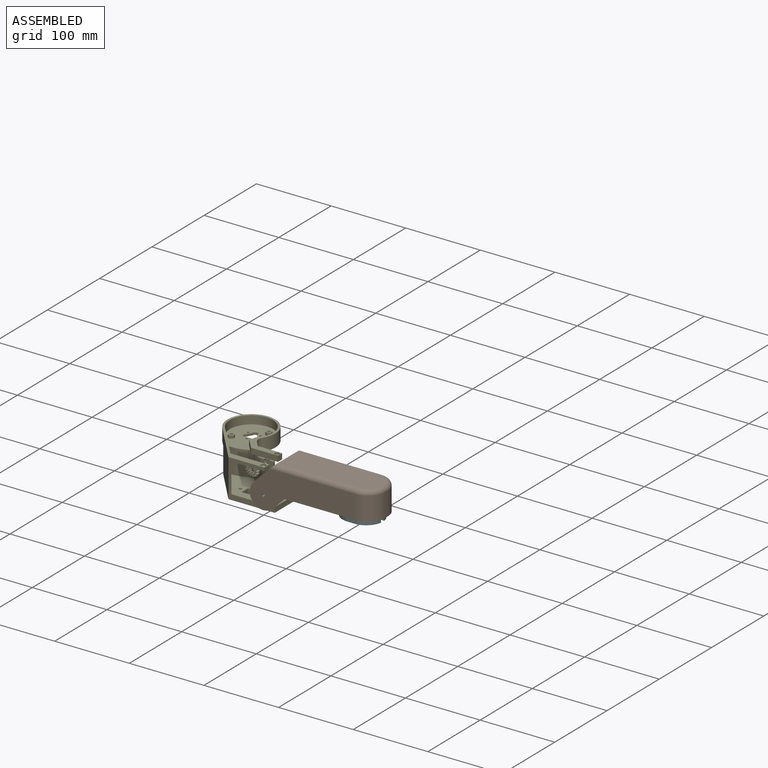
[diagram: assembled view]
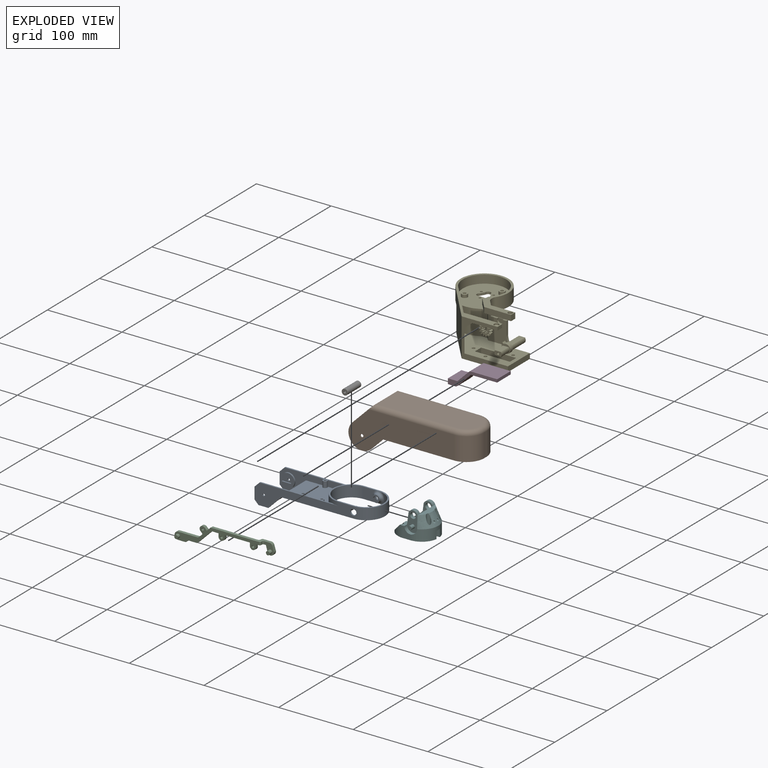
[diagram: exploded view]
GUIDED TOUR — FREECAD ASSEMBLY "ThirdArmUpDown"

This assembly has 7 components, labeled P0..P6 below (a component is one placed body or linked part; the same part can appear more than once), held together by 0 modeled joints plus 9 derived contact edges. A joint is a constraint between two components; its type names the relative motion it leaves free:
  CONTACT — a derived adjacency edge — the two components touch in the source model (clearance under 2% of the assembly's diagonal); it is measured from the geometry, not a modeled constraint.
Axis/direction vectors are unit vectors and 'through' points are millimeter coordinates, both in the assembly's world frame.

MATES
  1. CONTACT "contact_0_1": P0 <-> P1, contact direction (0.000, 1.000, 0.000) through (-0.05, 50.00, 1.75) mm (derived from contact, not a modeled constraint)
  2. CONTACT "contact_0_2": P0 <-> P2, contact direction (-1.000, 0.000, 0.000) through (-0.55, 4.00, 9.76) mm (derived from contact, not a modeled constraint)
  3. CONTACT "contact_0_4": P0 <-> P4, contact direction (0.000, 1.000, 0.000) through (0.18, 2.00, -1.49) mm (derived from contact, not a modeled constraint)
  4. CONTACT "contact_0_5": P0 <-> P5, contact direction (1.000, 0.000, 0.000) through (128.10, 4.09, 10.63) mm (derived from contact, not a modeled constraint)
  5. CONTACT "contact_1_4": P1 <-> P4, contact direction (0.000, 1.000, 0.000) through (-16.67, 49.98, -9.12) mm (derived from contact, not a modeled constraint)
  6. CONTACT "contact_1_5": P1 <-> P5, contact direction (1.000, 0.000, 0.000) through (122.24, 1.57, 3.19) mm (derived from contact, not a modeled constraint)
  7. CONTACT "contact_2_3": P2 <-> P3, contact direction (0.000, 1.000, 0.000) through (24.62, 12.00, 11.00) mm (derived from contact, not a modeled constraint)
  8. CONTACT "contact_2_5": P2 <-> P5, contact direction (1.000, 0.000, 0.000) through (118.02, 13.00, 20.13) mm (derived from contact, not a modeled constraint)
  9. CONTACT "contact_2_6": P2 <-> P6, contact direction (1.000, 0.000, 0.000) through (102.17, 12.05, 23.14) mm (derived from contact, not a modeled constraint)

ASSEMBLY ORDER
  1. P0 — the base component [order heuristic]
  2. P1 — core [order heuristic]
  3. P3 [order verified]
  4. P4 — core [order heuristic]
  5. P5 — core [order heuristic]
  6. P2 — core [order heuristic]
  7. P6 [order verified]
Order-tag legend:
  [order verified] — this step's position reverses a verified removal order: the component was checked to insert without passing through the ones already placed.
  [order heuristic] — the first 5 components form the assembly's core: parts whose collision-free extraction could not be verified, listed in mate-graph order.

Of the 7 components, 4 carry a construction recipe — the FreeCAD feature program (sketches with constraints, then the solid features that consume them) that regenerates the part from scratch, quoted from this document or from the linked companion document it references; the rest are supplied as boundary geometry only. The tour below walks the components in assembly order: each is shown spotlighted twice — in the assembled view, then in the exploded view, where a leader line traces a displaced component back to its assembled socket (components that stay in place when exploded have no leader line; saturated green if recipe-attached, orange if geometry-only; every other component desaturated gray) — followed by its recipe or geometry summary and the mates that hold it.
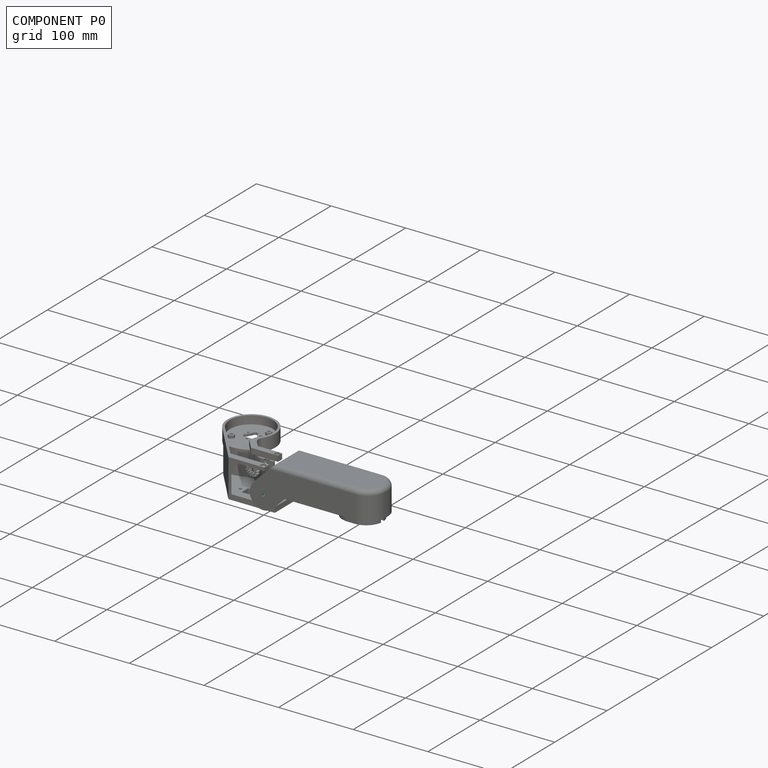
[diagram: component P0 — assembled]
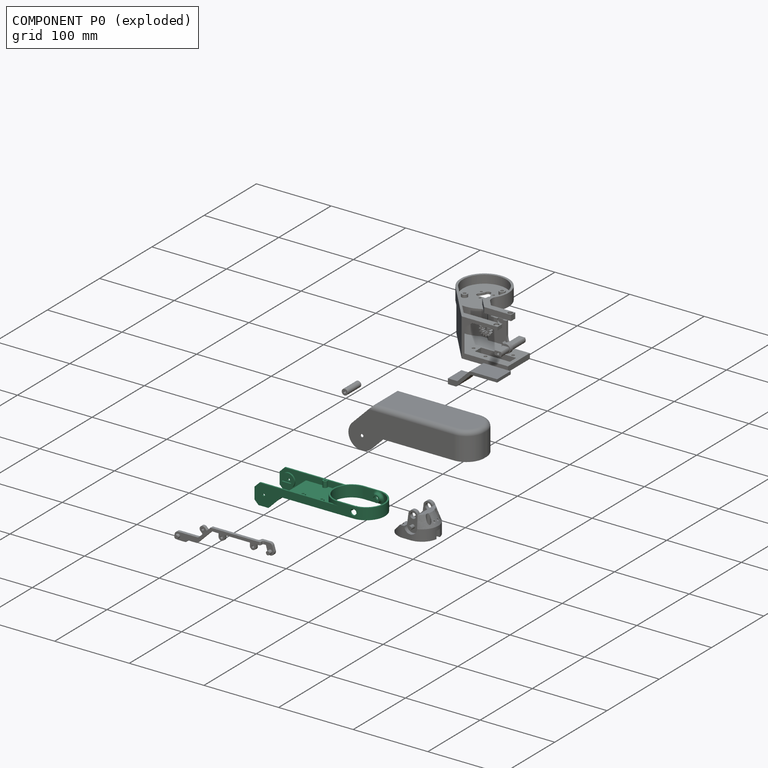
[diagram: component P0 — exploded]
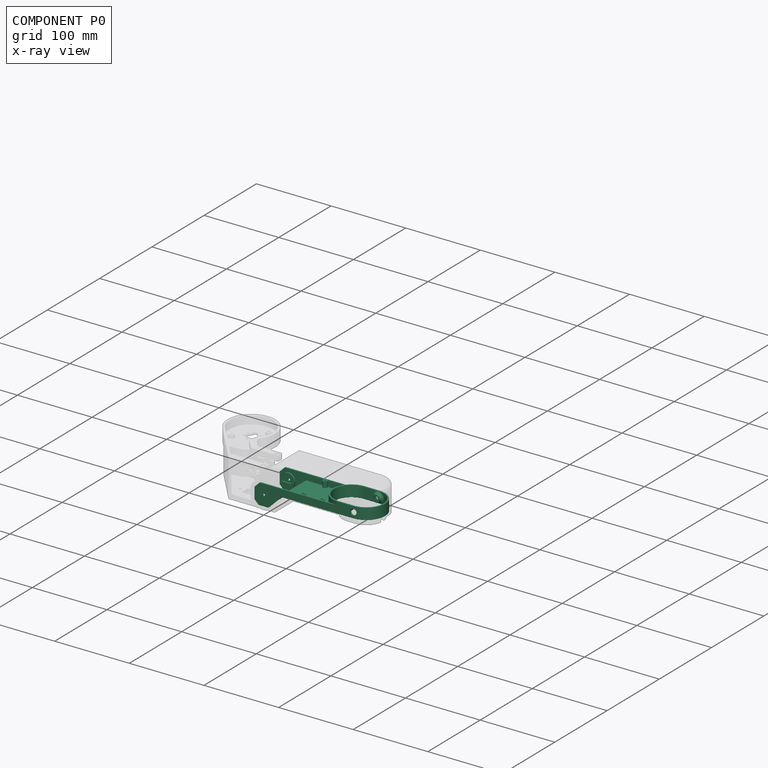
[diagram: component P0 — x-ray view]
COMPONENT P0 — recipe-attached ("ThirdArm", modeled in this document).
Held by: resting contact with P1 (derived edge); resting contact with P2 (derived edge); resting contact with P4 (derived edge); resting contact with P5 (derived edge).
Construction recipe (the document's own serialized feature program — sketch geometry with constraints, then the solid features built on it; lengths are millimeters unless a unit is written):

FEATURE [Sketcher::SketchObject] Sketch
  ArcFitTolerance = 1e-06
  AttachmentSupport = -> [XZ_Plane]
  FullyConstrained = false
  MakeInternals = false
  MapMode = 5
  Placement = pos=(0,0,0) rot=(1,0,0;1.5708rad)
  expr: Constraints[17] = <<Spreadsheet>>.ThirdArmLength
  sketch-geometry (8):
    g0: LineSegment StartX=23.728 StartY=3.5 StartZ=0 EndX=100 EndY=3.5 EndZ=0
    g1: LineSegment StartX=100 StartY=3.5 StartZ=0 EndX=100 EndY=13.5 EndZ=0
    g2: LineSegment StartX=100 StartY=13.5 StartZ=0 EndX=-5.63442 EndY=13.5 EndZ=0
    g3: LineSegment StartX=-5.63442 StartY=13.5 StartZ=0 EndX=-12.3353 EndY=6.79914 EndZ=0
    g4: LineSegment StartX=-12.3353 StartY=6.79914 StartZ=0 EndX=-12.3353 EndY=-8.76569 EndZ=0
    g5: LineSegment StartX=-12.3353 StartY=-8.76569 StartZ=0 EndX=-7.00513 EndY=-14.0958 EndZ=0
    g6: LineSegment StartX=-7.00513 StartY=-14.0958 StartZ=0 EndX=6.13216 EndY=-14.0958 EndZ=0
    g7: LineSegment StartX=23.728 StartY=3.5 StartZ=0 EndX=6.13216 EndY=-14.0958 EndZ=0
  constraints (19):
    c: Horizontal(g0)
    c: Coincident(g0,g1)
    c: Coincident(g1,g2)
    c: Horizontal(g2)
    c: Coincident(g2,g3)
    c: Coincident(g3,g4)
    c: Vertical(g4)
    c: Coincident(g4,g5)
    c: Coincident(g5,g6)
    c: Horizontal(g6)
    c: Coincident(g0,g7)
    c: Coincident(g7,g6)
    c: Angle(g3,g2) = 2.35619
    c: Angle(g5,g4) = 2.35619
    c: Angle(g7,g6) = 2.35619
    c: Vertical(g1)
    c: Distance(g-1,g0) = 3.5
    c: Distance(g-2,g1) = 100
    c: DistanceY(g1,g1) = 10
FEATURE [PartDesign::Pad] Pad
  Direction = (0,-1,2e-16)
  Length = 50
  Length2 = 10
  Placement = pos=(0,0,0) rot=(1,0,0;1.5708rad)
  Profile = -> Sketch
  ReferenceAxis = -> Sketch [N_Axis]
  Refine = true
  Reversed = true
  Suppressed = false
  Type = 0
  expr: Length = <<Spreadsheet>>.ThirdArmWidth
FEATURE [PartDesign::Thickness] Thickness
  Base = -> Pad [Face3]
  BaseFeature = -> Pad
  Intersection = false
  Join = 0
  Mode = 0
  Refine = true
  Reversed = true
  SupportTransform = false
  Suppressed = false
  Value = 2
FEATURE [Sketcher::SketchObject] Sketch027
  ArcFitTolerance = 1e-06
  AttachmentSupport = -> [Thickness]
  ExternalGeometry = -> [Thickness]
  FullyConstrained = false
  MakeInternals = false
  MapMode = 5
  Placement = pos=(-12.3353,0,0) rot=(0.57735,-0.57735,-0.57735;2.0944rad)
  sketch-geometry (4):
    g0: LineSegment StartX=-2 StartY=-21.8433 StartZ=0 EndX=-2 EndY=36.0708 EndZ=0
    g1: LineSegment StartX=-2 StartY=36.0708 StartZ=0 EndX=-48 EndY=36.0708 EndZ=0
    g2: LineSegment StartX=-48 StartY=36.0708 StartZ=0 EndX=-48 EndY=-21.8433 EndZ=0
    g3: LineSegment StartX=-48 StartY=-21.8433 StartZ=0 EndX=-2 EndY=-21.8433 EndZ=0
  constraints (10):
    c: Coincident(g0,g1)
    c: Coincident(g1,g2)
    c: Coincident(g2,g3)
    c: Coincident(g3,g0)
    c: Vertical(g0)
    c: Vertical(g2)
    c: Horizontal(g1)
    c: Horizontal(g3)
    c: Distance(g-2,g0) = 2
    c: Distance(g-3,g2) = 2
FEATURE [PartDesign::Pocket] Pocket
  BaseFeature = -> Thickness
  Direction = (1,0,0)
  Length = 30
  Length2 = 5
  Profile = -> Sketch027
  ReferenceAxis = -> Sketch027 [N_Axis]
  Refine = true
  Suppressed = false
  Type = 0
FEATURE [Sketcher::SketchObject] Sketch028
  ArcFitTolerance = 1e-06
  AttachmentSupport = -> [Thickness]
  ExternalGeometry = -> [Thickness]
  FullyConstrained = true
  MakeInternals = false
  MapMode = 5
  Placement = pos=(0,5.9e-15,13.5) rot=(0,0,1;0rad)
  sketch-geometry (4):
    g0: ArcOfCircle CenterX=100 CenterY=25 CenterZ=0 NormalX=0 NormalY=0 NormalZ=1 AngleXU=0 Radius=23 StartAngle=1.5708 EndAngle=4.71239
    g1: ArcOfCircle CenterX=120 CenterY=25 CenterZ=0 NormalX=0 NormalY=0 NormalZ=1 AngleXU=0 Radius=23 StartAngle=4.71239 EndAngle=7.85398
    g2: LineSegment StartX=100 StartY=48 StartZ=0 EndX=120 EndY=48 EndZ=0
    g3: LineSegment StartX=100 StartY=2 StartZ=0 EndX=120 EndY=2 EndZ=0
  constraints (10):
    c: Tangent(g0,g2) = 1.5708
    c: Tangent(g0,g3) = -1.5708
    c: Tangent(g1,g2) = 1.5708
    c: Tangent(g1,g3) = -1.5708
    c: Equal(g0,g1)
    c: Horizontal(g3)
    c: Distance(g0,g1) = 20
    c: Vertical(g0,g-3)
    c: DistanceY(g0,g-3) = 2
    c: DistanceY(g-3,g0) = 2
FEATURE [PartDesign::Pocket] Pocket010
  BaseFeature = -> Pocket
  Direction = (0,0,-1)
  Length = 5
  Length2 = 5
  Profile = -> Sketch028
  ReferenceAxis = -> Sketch028 [N_Axis]
  Refine = true
  Suppressed = false
  Type = 1
FEATURE [Sketcher::SketchObject] Sketch029
  ArcFitTolerance = 1e-06
  AttachmentOffset = pos=(0,0,-2) rot=(0,0,1;0rad)
  AttachmentSupport = -> [Pocket010]
  ExternalGeometry = -> [Sketch,Pocket010]
  FullyConstrained = false
  MakeInternals = false
  MapMode = 5
  Placement = pos=(0,2.4e-15,3.5) rot=(0,0,1;0rad)
  sketch-geometry (8):
    g0: ArcOfCircle CenterX=100 CenterY=25 CenterZ=0 NormalX=0 NormalY=0 NormalZ=1 AngleXU=0 Radius=23 StartAngle=1.5708 EndAngle=4.71239
    g1: ArcOfCircle CenterX=120 CenterY=25 CenterZ=0 NormalX=0 NormalY=0 NormalZ=1 AngleXU=0 Radius=23 StartAngle=4.71239 EndAngle=7.85398
    g2: LineSegment StartX=100 StartY=48 StartZ=0 EndX=120 EndY=48 EndZ=0
    g3: LineSegment StartX=100 StartY=2 StartZ=0 EndX=120 EndY=2 EndZ=0
    g4: ArcOfCircle CenterX=100 CenterY=25.0194 CenterZ=0 NormalX=0 NormalY=0 NormalZ=1 AngleXU=0 Radius=24.9806 StartAngle=1.5708 EndAngle=4.71239
    g5: ArcOfCircle CenterX=120 CenterY=25.0194 CenterZ=0 NormalX=0 NormalY=0 NormalZ=1 AngleXU=0 Radius=24.9806 StartAngle=4.71239 EndAngle=7.85398
    g6: LineSegment StartX=100 StartY=50 StartZ=0 EndX=120 EndY=50 EndZ=0
    g7: LineSegment StartX=100 StartY=0.038755 StartZ=0 EndX=120 EndY=0.038755 EndZ=0
  constraints (17):
    c: Tangent(g0,g2) = 1.5708
    c: Tangent(g0,g3) = -1.5708
    c: Tangent(g1,g2) = 1.5708
    c: Tangent(g1,g3) = -1.5708
    c: Equal(g0,g1)
    c: Horizontal(g3)
    c: Distance(g0,g1) = 20
    c: Vertical(g-3,g0)
    c: Distance(g-3,g0) = 2
    c: DistanceY(g-4,g0) = 2
    c: Tangent(g4,g6) = 1.5708
    c: Tangent(g4,g7) = -1.5708
    c: Tangent(g5,g6) = 1.5708
    c: Tangent(g5,g7) = -1.5708
    c: Equal(g4,g5)
    c: Horizontal(g7)
    c: Distance(g2,g6) = 2
FEATURE [PartDesign::Pad] Pad016
  BaseFeature = -> Pocket010
  Direction = (0,0,1)
  Length = 15
  Length2 = 10
  Profile = -> Sketch029
  ReferenceAxis = -> Sketch029 [N_Axis]
  Refine = true
  Suppressed = false
  Type = 0
FEATURE [Sketcher::SketchObject] Sketch030
  ArcFitTolerance = 1e-06
  AttachmentSupport = -> [Pad016]
  FullyConstrained = true
  MakeInternals = false
  MapMode = 5
  Placement = pos=(0,0.038755,0) rot=(1,0,0;1.5708rad)
  expr: Constraints[2] = <<Spreadsheet>>.ThirdArmLength + 20
  sketch-geometry (1):
    g0: Circle CenterX=120 CenterY=11 CenterZ=0 NormalX=0 NormalY=0 NormalZ=1 AngleXU=0 Radius=4
  constraints (3):
    c: Distance(g0,g-1) = 11
    c: Diameter(g0) = 8
    c: DistanceX(g-1,g0) = 120
FEATURE [Sketcher::SketchObject] Sketch031
  ArcFitTolerance = 1e-06
  AttachmentSupport = -> [Pad016]
  FullyConstrained = true
  MakeInternals = false
  MapMode = 5
  Placement = pos=(0,2,0) rot=(0,0.707107,0.707107;3.14159rad)
  expr: Constraints[2] = <<Spreadsheet>>.ThirdArmLength + 20
  sketch-geometry (1):
    g0: Circle CenterX=-120 CenterY=11 CenterZ=0 NormalX=0 NormalY=0 NormalZ=1 AngleXU=0 Radius=5
  constraints (3):
    c: Diameter(g0) = 10
    c: Distance(g0,g-1) = 11
    c: DistanceX(g0,g-1) = 120
FEATURE [PartDesign::Pad] Pad017
  BaseFeature = -> Pad016
  Direction = (0,1,-2e-16)
  Length = 5
  Length2 = 10
  Profile = -> Sketch031
  ReferenceAxis = -> Sketch031 [N_Axis]
  Refine = true
  Suppressed = false
  Type = 0
FEATURE [PartDesign::Pocket] Pocket011
  BaseFeature = -> Pad017
  Direction = (0,1,-2e-16)
  Length = 5
  Length2 = 5
  Profile = -> Sketch030
  ReferenceAxis = -> Sketch030 [N_Axis]
  Refine = true
  Suppressed = false
  Type = 0
FEATURE [Sketcher::SketchObject] Sketch032
  ArcFitTolerance = 1e-06
  AttachmentSupport = -> [Pocket011]
  FullyConstrained = true
  MakeInternals = false
  MapMode = 5
  Placement = pos=(0,7,-1.8e-15) rot=(0,0.707107,0.707107;3.14159rad)
  expr: Constraints[2] = <<Spreadsheet>>.ThirdArmLength + 20
  sketch-geometry (1):
    g0: Circle CenterX=-120 CenterY=11 CenterZ=0 NormalX=0 NormalY=0 NormalZ=1 AngleXU=0 Radius=3
  constraints (3):
    c: Diameter(g0) = 6
    c: DistanceY(g-1,g0) = 11
    c: DistanceX(g0,g-1) = 120
FEATURE [PartDesign::Pocket] Pocket012
  BaseFeature = -> Pocket011
  Direction = (0,-1,2e-16)
  Length = 5
  Length2 = 5
  Profile = -> Sketch032
  ReferenceAxis = -> Sketch032 [N_Axis]
  Refine = true
  Suppressed = false
  Type = 0
FEATURE [PartDesign::Fillet] Fillet004
  Base = -> Pocket012 [Edge62,Edge57]
  BaseFeature = -> Pocket012
  Radius = 3
  Refine = true
  SupportTransform = false
  Suppressed = false
  UseAllEdges = false
FEATURE [Sketcher::SketchObject] Sketch039
  ArcFitTolerance = 1e-06
  AttachmentSupport = -> [Fillet004]
  FullyConstrained = false
  MakeInternals = false
  MapMode = 5
  Placement = pos=(0,2,0) rot=(0,0.707107,0.707107;3.14159rad)
  sketch-geometry (4):
    g0: ArcOfCircle CenterX=-120 CenterY=11 CenterZ=0 NormalX=0 NormalY=0 NormalZ=1 AngleXU=0 Radius=3 StartAngle=0.785398 EndAngle=3.92699
    g1: ArcOfCircle CenterX=-113.653 CenterY=4.65255 CenterZ=0 NormalX=0 NormalY=0 NormalZ=1 AngleXU=0 Radius=3 StartAngle=3.92699 EndAngle=7.06858
    g2: LineSegment StartX=-117.879 StartY=13.1213 StartZ=0 EndX=-111.531 EndY=6.77387 EndZ=0
    g3: LineSegment StartX=-122.121 StartY=8.87868 StartZ=0 EndX=-115.774 EndY=2.53123 EndZ=0
  constraints (9):
    c: Tangent(g0,g2) = 1.5708
    c: Tangent(g0,g3) = -1.5708
    c: Tangent(g1,g2) = 1.5708
    c: Tangent(g1,g3) = -1.5708
    c: Equal(g0,g1)
    c: Radius(g0) = 3
    c: DistanceX(g0,g-1) = 120
    c: DistanceY(g-1,g0) = 11
    c: Angle(g3,g-1) = 0.785398
FEATURE [PartDesign::Pocket] Pocket013
  BaseFeature = -> Fillet004
  Direction = (0,-1,2e-16)
  Length = 5
  Length2 = 5
  Profile = -> Sketch039
  ReferenceAxis = -> Sketch039 [N_Axis]
  Refine = true
  Reversed = true
  Suppressed = false
  Type = 0
FEATURE [Sketcher::SketchObject] Sketch040
  ArcFitTolerance = 1e-06
  AttachmentSupport = -> [Pocket013]
  FullyConstrained = true
  MakeInternals = false
  MapMode = 5
  Placement = pos=(0,2,0) rot=(0,0.707107,0.707107;3.14159rad)
  sketch-geometry (5):
    g0: ArcOfCircle CenterX=0 CenterY=0 CenterZ=0 NormalX=0 NormalY=0 NormalZ=1 AngleXU=0 Radius=5.05 StartAngle=2.48065 EndAngle=3.80254
    g1: LineSegment StartX=-3.98654 StartY=-3.1 StartZ=0 EndX=8.44926 EndY=-3.1 EndZ=0
    g2: LineSegment StartX=8.44926 StartY=3.1 StartZ=0 EndX=-3.98654 EndY=3.1 EndZ=0
    g3: GeomPoint [constr] X=0 Y=0 Z=0
    g4: ArcOfCircle CenterX=0 CenterY=0 CenterZ=0 NormalX=0 NormalY=0 NormalZ=1 AngleXU=0 Radius=9 StartAngle=0.351647 EndAngle=5.93154
  constraints (13):
    c: Coincident(g0,g-1)
    c: Diameter(g0) = 10.1
    c: Horizontal(g1)
    c: Horizontal(g2)
    c: Coincident(g3,g0)
    c: Coincident(g4,g0)
    c: Diameter(g4) = 18
    c: Coincident(g2,g0)
    c: Coincident(g0,g1)
    c: Distance(g-1,g2) = 3.1
    c: Distance(g-1,g1) = 3.1
    c: Coincident(g2,g4)
    c: Coincident(g1,g4)
FEATURE [PartDesign::Pad] Pad024
  BaseFeature = -> Pocket013
  Direction = (0,1,-2e-16)
  Length = 2
  Length2 = 10
  Profile = -> Sketch040
  ReferenceAxis = -> Sketch040 [N_Axis]
  Refine = true
  Suppressed = false
  Type = 0
FEATURE [Sketcher::SketchObject] Sketch041
  ArcFitTolerance = 1e-06
  AttachmentSupport = -> [Pad024]
  FullyConstrained = true
  MakeInternals = false
  MapMode = 5
  Placement = pos=(0,2,0) rot=(0,0.707107,0.707107;3.14159rad)
  sketch-geometry (1):
    g0: Circle CenterX=0 CenterY=0 CenterZ=0 NormalX=0 NormalY=0 NormalZ=1 AngleXU=0 Radius=1.5
  constraints (2):
    c: Coincident(g0,g-1)
    c: Diameter(g0) = 3
FEATURE [PartDesign::Pocket] Pocket014
  BaseFeature = -> Pad024
  Direction = (0,-1,2e-16)
  Length = 5
  Length2 = 5
  Profile = -> Sketch041
  ReferenceAxis = -> Sketch041 [N_Axis]
  Refine = true
  Suppressed = false
  Type = 0
FEATURE [Sketcher::SketchObject] Sketch042
  ArcFitTolerance = 1e-06
  AttachmentSupport = -> [Pocket014]
  FullyConstrained = true
  MakeInternals = false
  MapMode = 5
  Placement = pos=(0,2.4e-15,5.5) rot=(0,0,1;0rad)
  sketch-geometry (2):
    g0: Circle CenterX=50 CenterY=4 CenterZ=0 NormalX=0 NormalY=0 NormalZ=1 AngleXU=0 Radius=3
    g1: Circle CenterX=75 CenterY=4 CenterZ=0 NormalX=0 NormalY=0 NormalZ=1 AngleXU=0 Radius=3
  constraints (6):
    c: Horizontal(g0,g1)
    c: Diameter(g0) = 6
    c: Diameter(g1) = 6
    c: Distance(g0,g-1) = 4
    c: DistanceX(g-1,g0) = 50
    c: DistanceX(g0,g1) = 25
FEATURE [PartDesign::Pad] Pad025
  BaseFeature = -> Pocket014
  Direction = (0,0,1)
  Length = 8
  Length2 = 10
  Profile = -> Sketch042
  ReferenceAxis = -> Sketch042 [N_Axis]
  Refine = true
  Suppressed = false
  Type = 0
FEATURE [Sketcher::SketchObject] Sketch043
  ArcFitTolerance = 1e-06
  AttachmentSupport = -> [Pad025]
  FullyConstrained = true
  MakeInternals = false
  MapMode = 5
  Placement = pos=(0,0,13.5) rot=(0,0,1;0rad)
  sketch-geometry (2):
    g0: Circle CenterX=50 CenterY=4 CenterZ=0 NormalX=0 NormalY=0 NormalZ=1 AngleXU=0 Radius=1.5
    g1: Circle CenterX=75 CenterY=4 CenterZ=0 NormalX=0 NormalY=0 NormalZ=1 AngleXU=0 Radius=1.5
  constraints (6):
    c: Diameter(g0) = 3
    c: Diameter(g1) = 3
    c: Horizontal(g0,g1)
    c: DistanceX(g-1,g0) = 50
    c: DistanceY(g-1,g0) = 4
    c: DistanceX(g0,g1) = 25
FEATURE [PartDesign::Pocket] Pocket015
  BaseFeature = -> Pad025
  Direction = (0,0,-1)
  Length = 5
  Length2 = 5
  Profile = -> Sketch043
  ReferenceAxis = -> Sketch043 [N_Axis]
  Refine = true
  Suppressed = false
  Type = 1
FEATURE [Sketcher::SketchObject] Sketch044
  ArcFitTolerance = 1e-06
  AttachmentSupport = -> [Pocket015]
  FullyConstrained = false
  MakeInternals = false
  MapMode = 5
  Placement = pos=(0,0,18.5) rot=(0,0,1;0rad)
  sketch-geometry (4):
    g0: LineSegment StartX=158.319 StartY=25 StartZ=0 EndX=158.319 EndY=123.408 EndZ=0
    g1: LineSegment StartX=158.319 StartY=123.408 StartZ=0 EndX=-117.641 EndY=123.408 EndZ=0
    g2: LineSegment StartX=-117.641 StartY=123.408 StartZ=0 EndX=-117.641 EndY=25 EndZ=0
    g3: LineSegment StartX=-117.641 StartY=25 StartZ=0 EndX=158.319 EndY=25 EndZ=0
  constraints (9):
    c: Coincident(g0,g1)
    c: Coincident(g1,g2)
    c: Coincident(g2,g3)
    c: Coincident(g3,g0)
    c: Vertical(g0)
    c: Vertical(g2)
    c: Horizontal(g1)
    c: Horizontal(g3)
    c: Distance(g-1,g3) = 25
FEATURE [PartDesign::Pocket] Pocket016
  BaseFeature = -> Pocket015
  Direction = (0,0,-1)
  Length = 5
  Length2 = 5
  Profile = -> Sketch044
  ReferenceAxis = -> Sketch044 [N_Axis]
  Refine = true
  Suppressed = false
  Type = 1
FEATURE [PartDesign::Mirrored] Mirrored
  BaseFeature = -> Pocket016
  MirrorPlane = -> Pocket016 [Face6]
  Refine = true
  Suppressed = false
  TransformMode = 1
FEATURE [PartDesign::Body] Body  label="ThirdArm"
  AllowCompound = false
  Group = -> [Sketch,Pad,Thickness,Sketch027,Pocket,Sketch028,Pocket010,Sketch029,Pad016,Pad017,Sketch030,Pocket011,Sketch031,Sketch032,Pocket012,Fillet004,Sketch039,Pocket013,Sketch040,Pad024,Sketch041,Pocket014,Sketch042,Pad025,Sketch043,Pocket015,Sketch044,Pocket016,Mirrored]
  Origin = -> Origin
  Tip = -> Mirrored
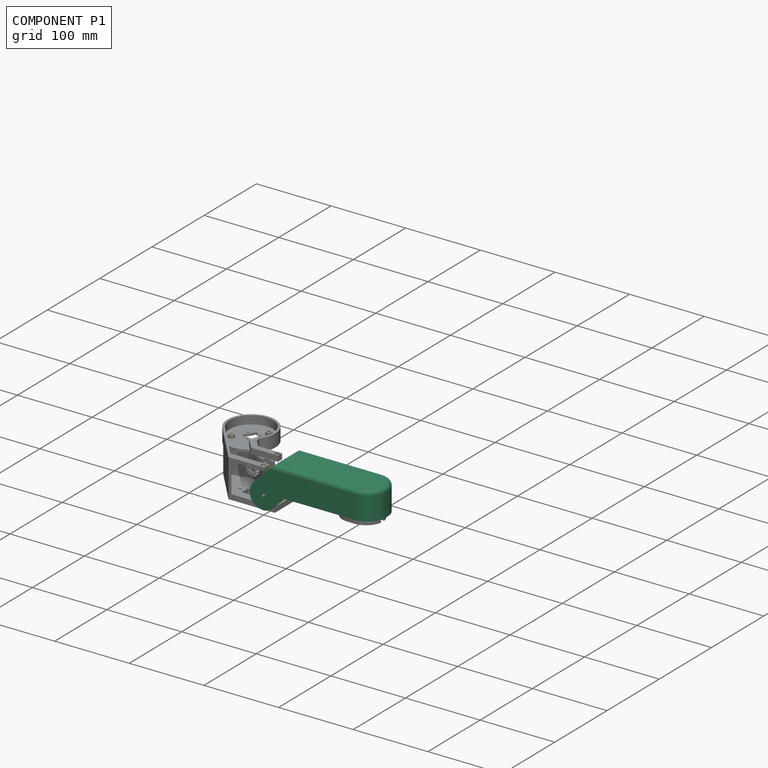
[diagram: component P1 — assembled]
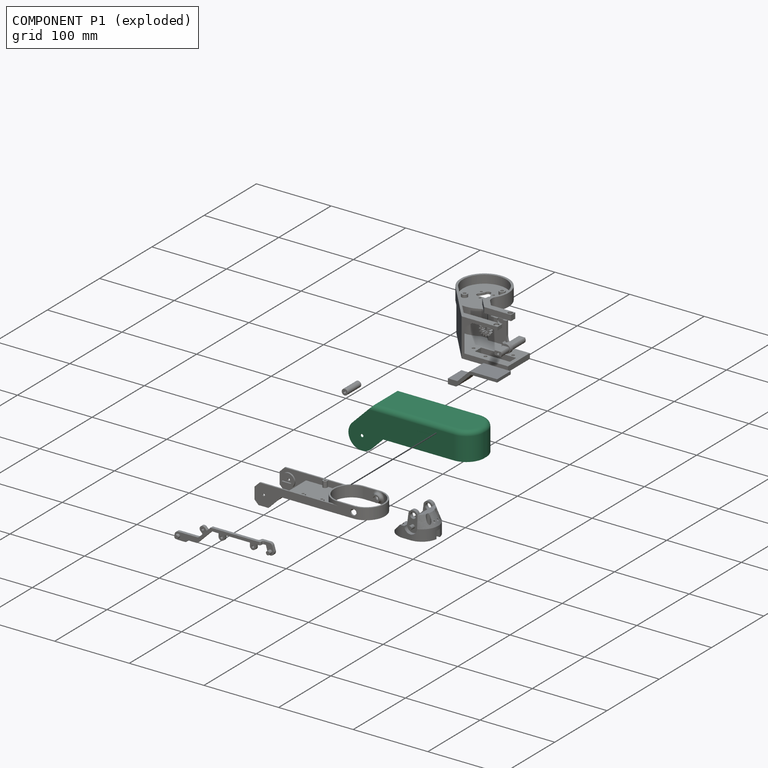
[diagram: component P1 — exploded]
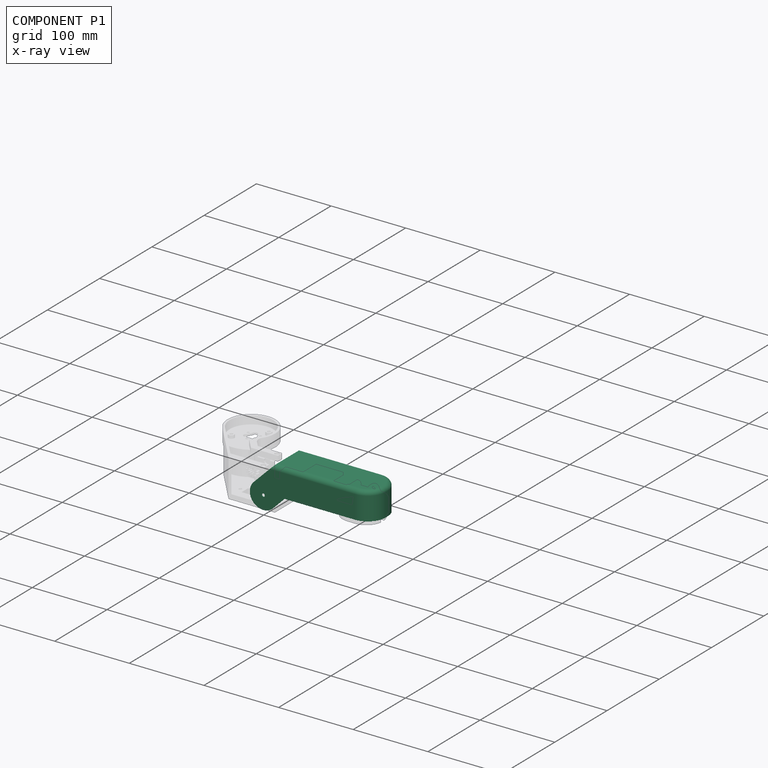
[diagram: component P1 — x-ray view]
COMPONENT P1 — recipe-attached ("UpdownCoverV2", modeled in this document).
Held by: resting contact with P0 (derived edge); resting contact with P4 (derived edge); resting contact with P5 (derived edge).
Construction recipe (the document's own serialized feature program — sketch geometry with constraints, then the solid features built on it; lengths are millimeters unless a unit is written):

FEATURE [Sketcher::SketchObject] Sketch025
  ArcFitTolerance = 1e-06
  AttachmentSupport = -> [XZ_Plane003]
  FullyConstrained = false
  MakeInternals = false
  MapMode = 5
  Placement = pos=(0,0,0) rot=(1,0,0;1.5708rad)
  sketch-geometry (7):
    g0: ArcOfCircle CenterX=0 CenterY=0 CenterZ=0 NormalX=0 NormalY=0 NormalZ=1 AngleXU=0 Radius=18 StartAngle=3.92699 EndAngle=7.06858
    g1: LineSegment StartX=12.7279 StartY=12.7279 StartZ=0 EndX=-14.6058 EndY=40.0617 EndZ=0
    g2: LineSegment StartX=-14.6058 StartY=40.0617 StartZ=0 EndX=-147.232 EndY=40.0617 EndZ=0
    g3: LineSegment StartX=-12.7279 StartY=-12.7279 StartZ=0 EndX=-28.5175 EndY=3.06167 EndZ=0
    g4: LineSegment StartX=-147.232 StartY=40.0617 StartZ=0 EndX=-147.232 EndY=3.06167 EndZ=0
    g5: LineSegment StartX=-147.232 StartY=3.06167 StartZ=0 EndX=-28.5175 EndY=3.06167 EndZ=0
    g6: Circle CenterX=0 CenterY=0 CenterZ=0 NormalX=0 NormalY=0 NormalZ=1 AngleXU=0 Radius=2
  constraints (17):
    c: Angle(g0) = 3.14159
    c: Coincident(g0,g-1)
    c: Tangent(g1,g0) = -1.5708
    c: Coincident(g2,g1)
    c: Horizontal(g2)
    c: Angle(g-1,g3) = 2.35619
    c: Coincident(g3,g0)
    c: Vertical(g4)
    c: Coincident(g4,g2)
    c: Coincident(g5,g4)
    c: Coincident(g5,g3)
    c: Horizontal(g5)
    c: Angle(g1,g-1) = 0.785398
    c: Radius(g0) = 18
    c: DistanceY(g4,g4) = 37
    c: Diameter(g6) = 4
    c: Coincident(g6,g0)
FEATURE [PartDesign::Pad] Pad015
  Direction = (0,-1,2e-16)
  Length = 52
  Length2 = 10
  Placement = pos=(0,0,0) rot=(1,0,0;1.5708rad)
  Profile = -> Sketch025
  ReferenceAxis = -> Sketch025 [N_Axis]
  Refine = true
  Suppressed = false
  Type = 0
FEATURE [Sketcher::SketchObject] Sketch026
  ArcFitTolerance = 1e-06
  AttachmentOffset = pos=(0,0,24) rot=(0,0,1;0rad)
  AttachmentSupport = -> [Pad015]
  FullyConstrained = true
  MakeInternals = false
  MapMode = 5
  Placement = pos=(0,1.3e-15,-20.9383) rot=(1,0,0;3.14159rad)
  sketch-geometry (4):
    g0: ArcOfCircle CenterX=-121 CenterY=26 CenterZ=0 NormalX=0 NormalY=0 NormalZ=1 AngleXU=0 Radius=25 StartAngle=1.5708 EndAngle=4.71239
    g1: ArcOfCircle CenterX=79 CenterY=26 CenterZ=0 NormalX=0 NormalY=0 NormalZ=1 AngleXU=0 Radius=25 StartAngle=4.71239 EndAngle=7.85398
    g2: LineSegment StartX=-121 StartY=51 StartZ=0 EndX=79 EndY=51 EndZ=0
    g3: LineSegment StartX=-121 StartY=1 StartZ=0 EndX=79 EndY=1 EndZ=0
  constraints (10):
    c: Tangent(g0,g2) = 1.5708
    c: Tangent(g0,g3) = -1.5708
    c: Tangent(g1,g2) = 1.5708
    c: Tangent(g1,g3) = -1.5708
    c: Equal(g0,g1)
    c: Horizontal(g3)
    c: Distance(g0,g1) = 200
    c: Radius(g0) = 25
    c: DistanceX(g0,g-1) = 121
    c: Distance(g0,g-1) = 26
FEATURE [PartDesign::Pocket] Pocket009
  BaseFeature = -> Pad015
  Direction = (0,0,1)
  Length = 60
  Length2 = 5
  Placement = pos=(0,0,0) rot=(1,0,0;1.5708rad)
  Profile = -> Sketch026
  ReferenceAxis = -> Sketch026 [N_Axis]
  Refine = true
  Suppressed = false
  Type = 0
FEATURE [Sketcher::SketchObject] Sketch045
  ArcFitTolerance = 1e-06
  AttachmentSupport = -> [Pocket009]
  FullyConstrained = true
  MakeInternals = false
  MapMode = 5
  Placement = pos=(0,0,39.0617) rot=(1,0,0;3.14159rad)
  sketch-geometry (10):
    g0: Circle CenterX=-50 CenterY=5 CenterZ=0 NormalX=0 NormalY=0 NormalZ=1 AngleXU=0 Radius=2
    g1: Circle CenterX=-50 CenterY=47 CenterZ=0 NormalX=0 NormalY=0 NormalZ=1 AngleXU=0 Radius=2
    g2: LineSegment StartX=-47 StartY=1 StartZ=0 EndX=-47 EndY=5 EndZ=0
    g3: LineSegment StartX=-53 StartY=1 StartZ=0 EndX=-53 EndY=5 EndZ=0
    g4: ArcOfCircle CenterX=-50 CenterY=5 CenterZ=0 NormalX=0 NormalY=0 NormalZ=1 AngleXU=0 Radius=3 StartAngle=0 EndAngle=3.14159
    g5: LineSegment StartX=-47 StartY=1 StartZ=0 EndX=-53 EndY=1 EndZ=0
    g6: LineSegment StartX=-47 StartY=51 StartZ=0 EndX=-47 EndY=47 EndZ=0
    g7: LineSegment StartX=-47 StartY=51 StartZ=0 EndX=-53 EndY=51 EndZ=0
    g8: LineSegment StartX=-53 StartY=51 StartZ=0 EndX=-53 EndY=47 EndZ=0
    g9: ArcOfCircle CenterX=-50 CenterY=47 CenterZ=0 NormalX=0 NormalY=0 NormalZ=1 AngleXU=0 Radius=3 StartAngle=3.14159 EndAngle=6.28319
  constraints (30):
    c: Diameter(g0) = 4
    c: Diameter(g1) = 4
    c: DistanceY(g-4,g0) = 4
    c: Distance(g1,g-3) = 4
    c: DistanceX(g1,g-1) = 50
    c: DistanceX(g0,g-1) = 50
    c: Vertical(g2)
    c: PointOnObject(g2,g-4)
    c: Coincident(g4,g0)
    c: Coincident(g4,g2)
    c: Coincident(g4,g3)
    c: Vertical(g3)
    c: Radius(g4) = 3
    c: DistanceY(g3,g3) = 4
    c: Horizontal(g3,g2)
    c: DistanceY(g2,g2) = 4
    c: Coincident(g5,g2)
    c: Coincident(g5,g3)
    c: PointOnObject(g6,g-3)
    c: Vertical(g6)
    c: Coincident(g6,g7)
    c: PointOnObject(g7,g-3)
    c: Coincident(g7,g8)
    c: Vertical(g8)
    c: Coincident(g9,g1)
    c: Coincident(g9,g6)
    c: Coincident(g9,g8)
    c: DistanceY(g8,g8) = 4
    c: DistanceY(g6,g6) = 4
    c: Radius(g9) = 3
FEATURE [PartDesign::Pad] Pad026
  BaseFeature = -> Pocket009
  Direction = (0,0,-1)
  Length = 25
  Length2 = 10
  Placement = pos=(0,0,0) rot=(1,0,0;1.5708rad)
  Profile = -> Sketch045
  ReferenceAxis = -> Sketch045 [N_Axis]
  Refine = true
  Suppressed = false
  Type = 0
FEATURE [PartDesign::LinearPattern] LinearPattern
  BaseFeature = -> Pad026
  Direction = -> Sketch045 [H_Axis]
  Length = 25
  Mode = 1
  Occurrences = 2
  Offset = 25
  Originals = -> [Pad026]
  Placement = pos=(0,0,0) rot=(1,0,0;1.5708rad)
  Refine = true
  Reversed = true
  Suppressed = false
  TransformMode = 0
FEATURE [PartDesign::Fillet] Fillet005
  Base = -> LinearPattern [Edge7,Edge34]
  BaseFeature = -> LinearPattern
  Placement = pos=(0,0,0) rot=(1,0,0;1.5708rad)
  Radius = 24
  Refine = true
  SupportTransform = false
  Suppressed = false
  UseAllEdges = false
FEATURE [PartDesign::Fillet] Fillet006
  Base = -> Fillet005 [Edge1,Edge9,Edge8,Edge10,Edge11,Edge53,Edge50,Edge46,Edge42,Edge62,Edge58,Edge54]
  BaseFeature = -> Fillet005
  Placement = pos=(0,0,0) rot=(1,0,0;1.5708rad)
  Radius = 6
  Refine = true
  SupportTransform = false
  Suppressed = false
  UseAllEdges = false
FEATURE [PartDesign::Body] Body003  label="UpdownCoverV2"
  AllowCompound = false
  Group = -> [Sketch025,Pad015,Sketch026,Pocket009,Sketch045,Pad026,LinearPattern,Fillet005,Fillet006]
  Origin = -> Origin003
  Placement = pos=(-1e-16,-1,-2e-16) rot=(0,0,1;3.14159rad)
  Tip = -> Fillet006
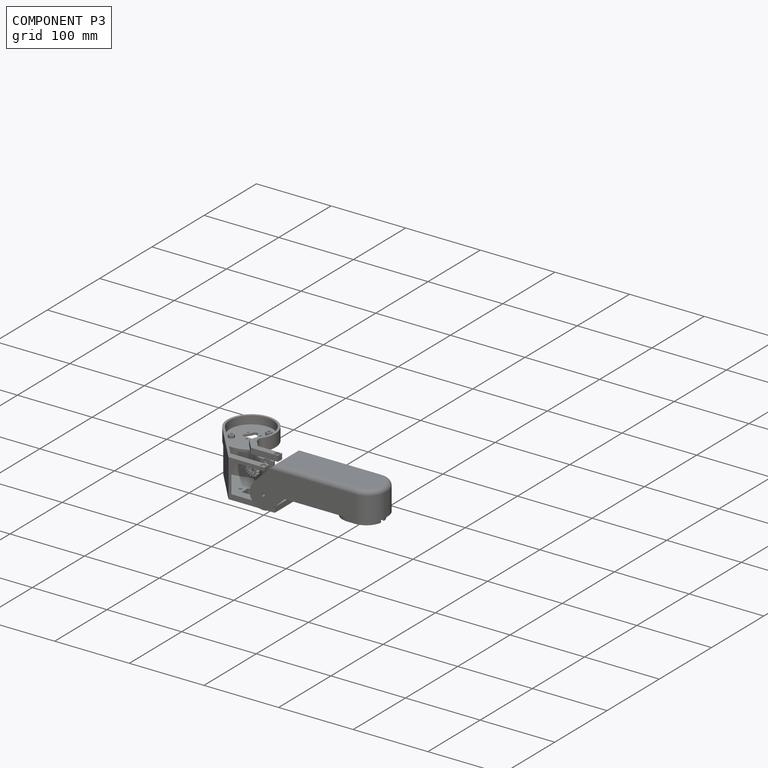
[diagram: component P3 — assembled]
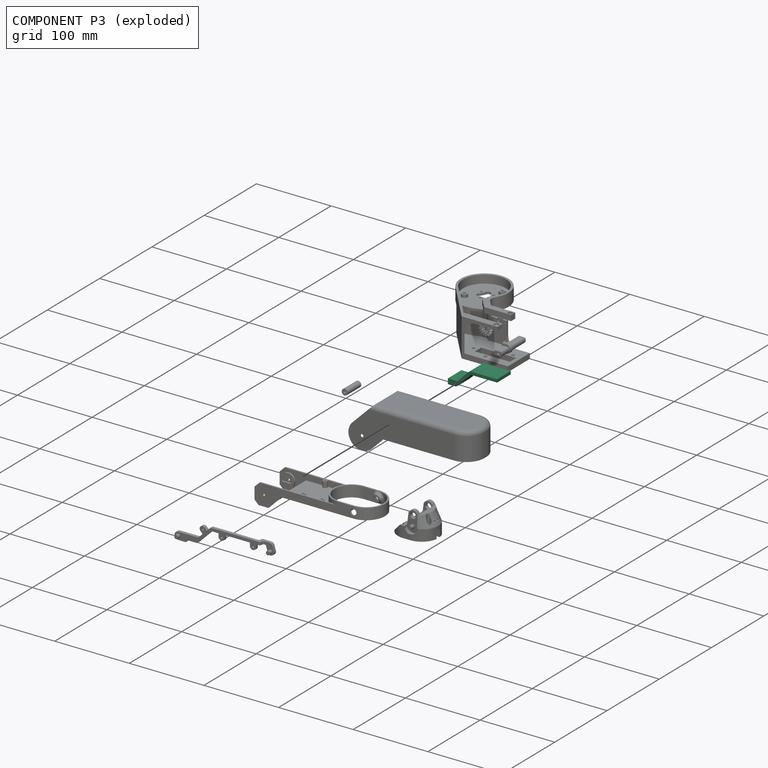
[diagram: component P3 — exploded]
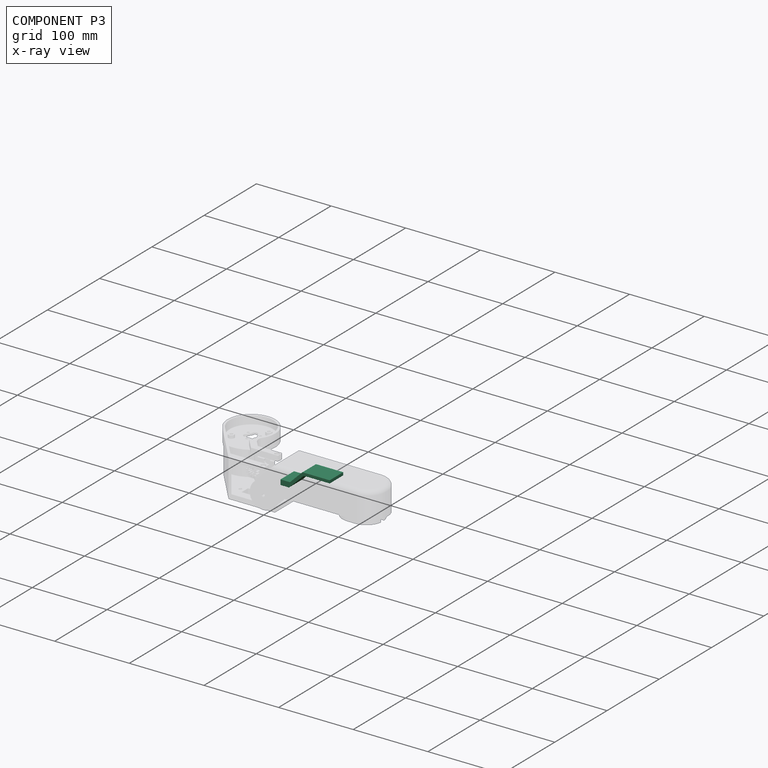
[diagram: component P3 — x-ray view]
COMPONENT P3 — recipe-attached ("DragShaftHolder", modeled in this document).
Held by: resting contact with P2 (derived edge).
Construction recipe (the document's own serialized feature program — sketch geometry with constraints, then the solid features built on it; lengths are millimeters unless a unit is written):

FEATURE [Sketcher::SketchObject] Sketch048
  ArcFitTolerance = 1e-06
  AttachmentSupport = -> [XZ_Plane006]
  FullyConstrained = false
  MakeInternals = false
  MapMode = 5
  Placement = pos=(0,0,0) rot=(1,0,0;1.5708rad)
  sketch-geometry (10):
    g0: LineSegment StartX=44.9566 StartY=17.5 StartZ=0 EndX=80 EndY=17.5 EndZ=0
    g1: LineSegment StartX=26.0481 StartY=-1.40845 StartZ=0 EndX=44.9566 EndY=17.5 EndZ=0
    g2: ArcOfCircle CenterX=24.62 CenterY=0.0196834 CenterZ=0 NormalX=0 NormalY=0 NormalZ=-1 AngleXU=2.35619 Radius=2.01968 StartAngle=1.5708 EndAngle=2.35619
    g3: LineSegment StartX=14 StartY=-2 StartZ=0 EndX=24.62 EndY=-2 EndZ=0
    g4: LineSegment StartX=26.7997 StartY=5 StartZ=0 EndX=42.6648 EndY=20.865 EndZ=0
    g5: ArcOfCircle CenterX=44.1977 CenterY=19.3321 CenterZ=0 NormalX=0 NormalY=0 NormalZ=-1 AngleXU=-0.785398 Radius=2.1679 StartAngle=1.5708 EndAngle=2.35619
    g6: LineSegment StartX=44.1977 StartY=21.5 StartZ=0 EndX=80 EndY=21.5 EndZ=0
    g7: LineSegment StartX=80 StartY=21.5 StartZ=0 EndX=80 EndY=17.5 EndZ=0
    g8: LineSegment StartX=14 StartY=-2 StartZ=0 EndX=14 EndY=5 EndZ=0
    g9: LineSegment StartX=14 StartY=5 StartZ=0 EndX=26.7997 EndY=5 EndZ=0
  constraints (26):
    c: Coincident(g0,g1)
    c: Tangent(g1,g2) = -1.5708
    c: Tangent(g2,g3) = -1.5708
    c: Tangent(g4,g5) = 1.5708
    c: Tangent(g5,g6) = 1.5708
    c: Horizontal(g0)
    c: Horizontal(g6)
    c: Horizontal(g3)
    c: Angle(g-1,g1) = 0.785398
    c: Angle(g-1,g4) = 0.785398
    c: Distance(g0,g6) = 4
    c: Distance(g1,g4) = 4
    c: Coincident(g7,g6)
    c: Coincident(g7,g0)
    c: Vertical(g7)
    c: Distance(g-2,g7) = 80
    c: Distance(g-1,g0) = 17.5
    c: Distance(g-1,g3) = 2
    c: DistanceX(g-1,g3) = 14
    c: DistanceX(g-1,g2) = 24.62
    c: Coincident(g3,g8)
    c: Vertical(g8)
    c: Coincident(g8,g9)
    c: Horizontal(g9)
    c: Coincident(g4,g9)
    c: DistanceY(g8,g8) = 7
FEATURE [PartDesign::Pad] Pad027
  Direction = (0,-1,2e-16)
  Length = 26
  Length2 = 10
  Midplane = true
  Placement = pos=(0,0,0) rot=(1,0,0;1.5708rad)
  Profile = -> Sketch048
  ReferenceAxis = -> Sketch048 [N_Axis]
  Refine = true
  Suppressed = false
  Type = 0
FEATURE [PartDesign::Body] Body006  label="DragShaftHolder"
  AllowCompound = false
  Group = -> [Sketch048,Pad027]
  Origin = -> Origin006
  Placement = pos=(0,25,13) rot=(0,0,1;0rad)
  Tip = -> Pad027
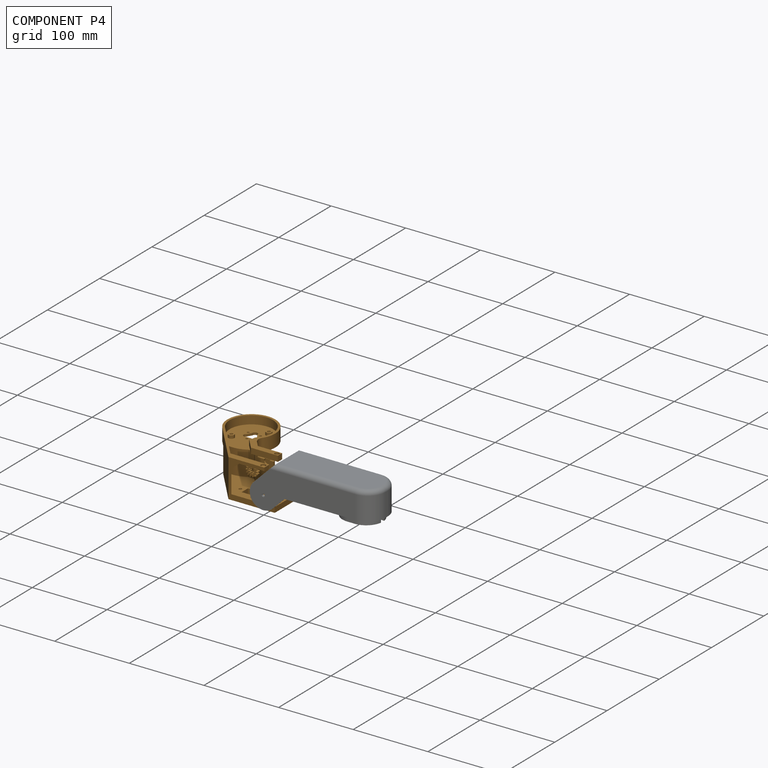
[diagram: component P4 — assembled]
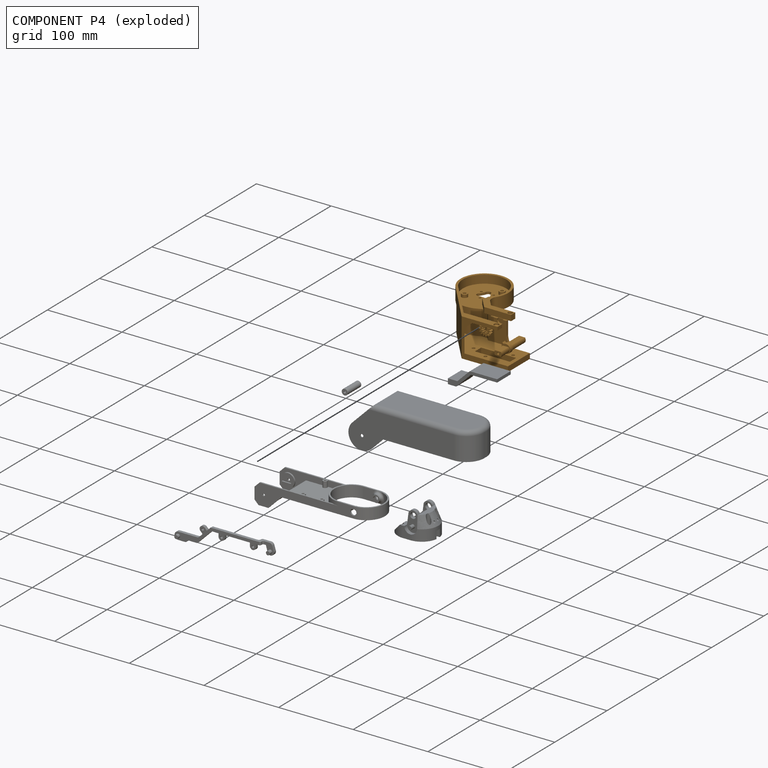
[diagram: component P4 — exploded]
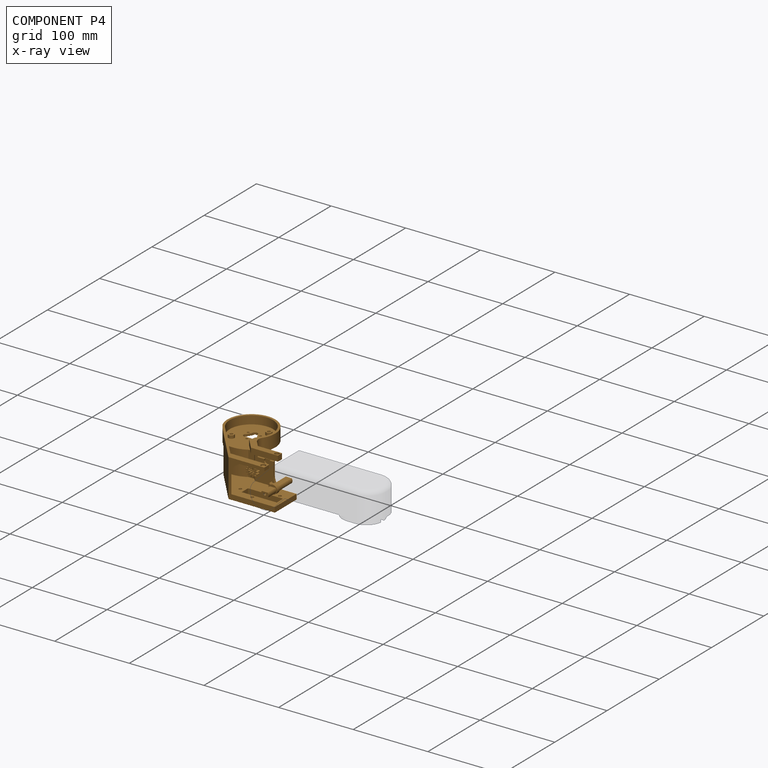
[diagram: component P4 — x-ray view]
COMPONENT P4 — geometry summary ("ThirdArmBody"; no construction recipe available for this part):
  bounding box: 119.0 x 113.5 x 51.0 mm
  tessellated surface: 20,328 triangles
  volume: 65241 mm^3 (9% of its bounding box)
Held by: resting contact with P0 (derived edge); resting contact with P1 (derived edge).
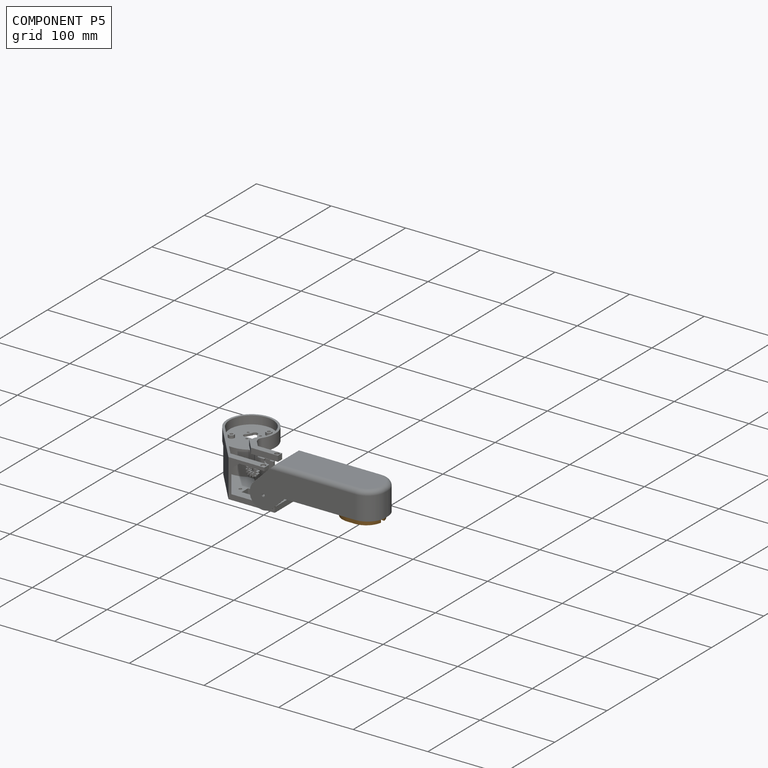
[diagram: component P5 — assembled]
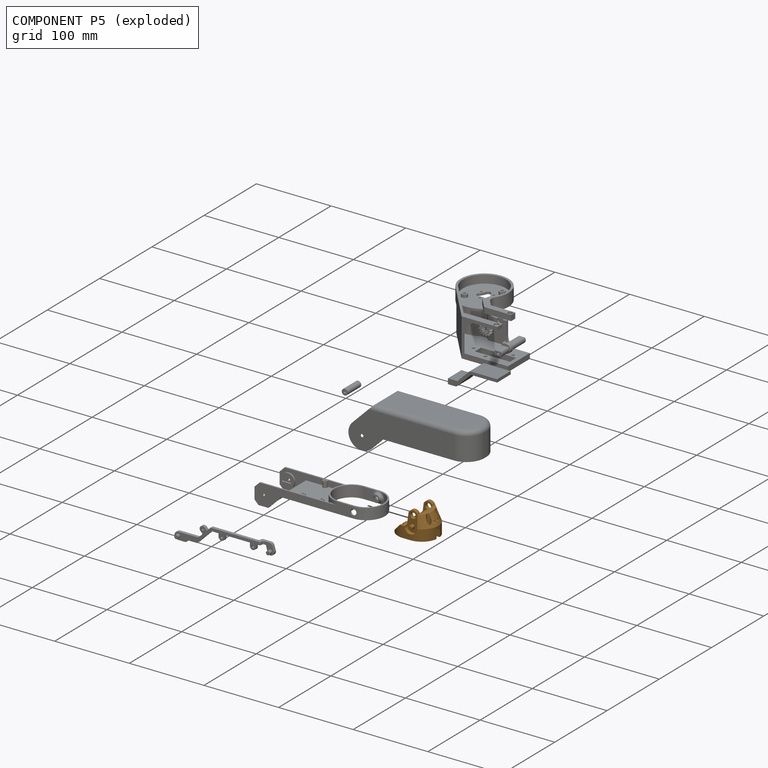
[diagram: component P5 — exploded]
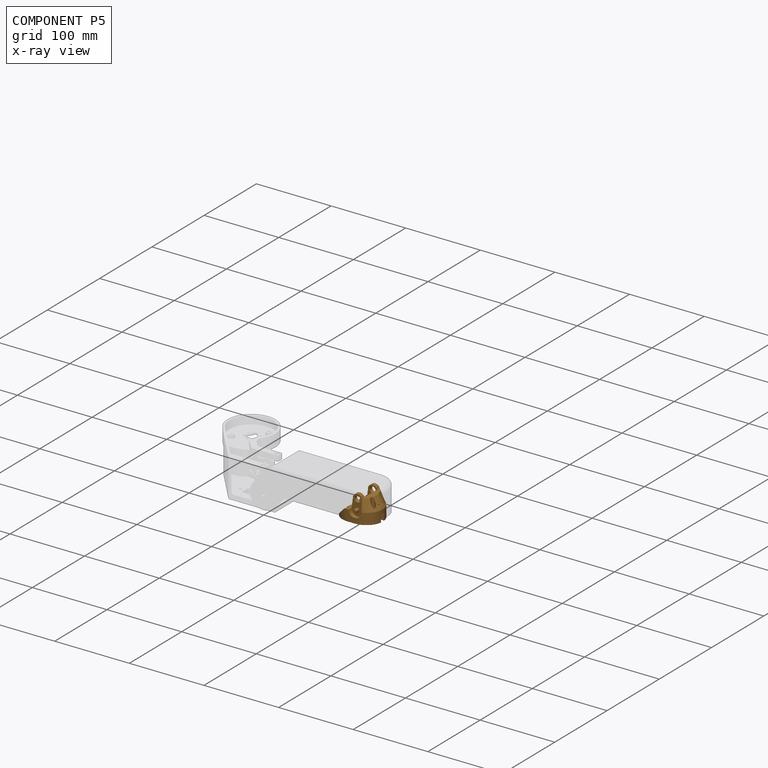
[diagram: component P5 — x-ray view]
COMPONENT P5 — geometry summary ("Gripper"; no construction recipe available for this part):
  bounding box: 51.0 x 46.0 x 34.3 mm
  tessellated surface: 9,112 triangles
  volume: 16832 mm^3 (21% of its bounding box)
Held by: resting contact with P0 (derived edge); resting contact with P1 (derived edge); resting contact with P2 (derived edge).
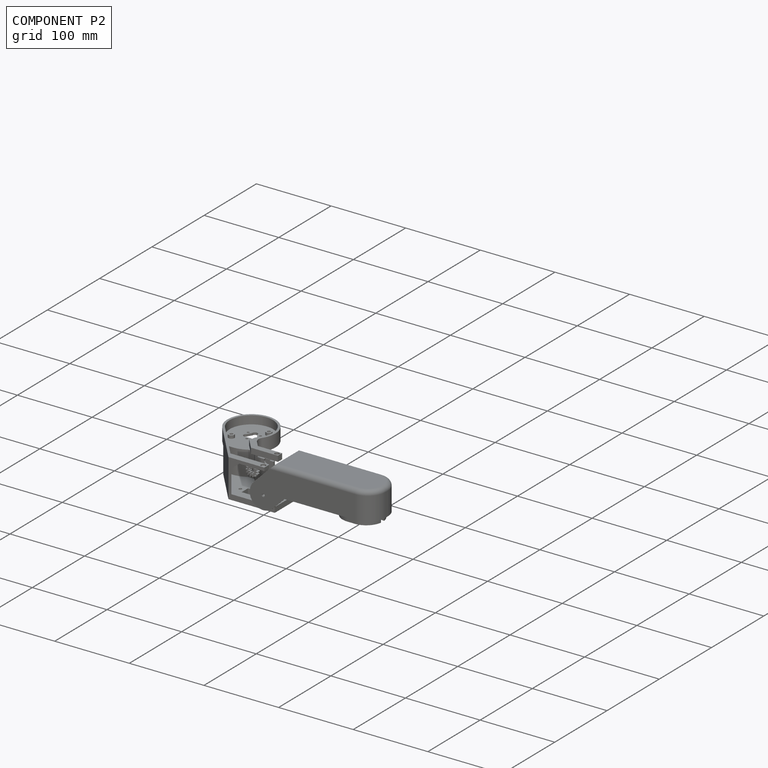
[diagram: component P2 — assembled]
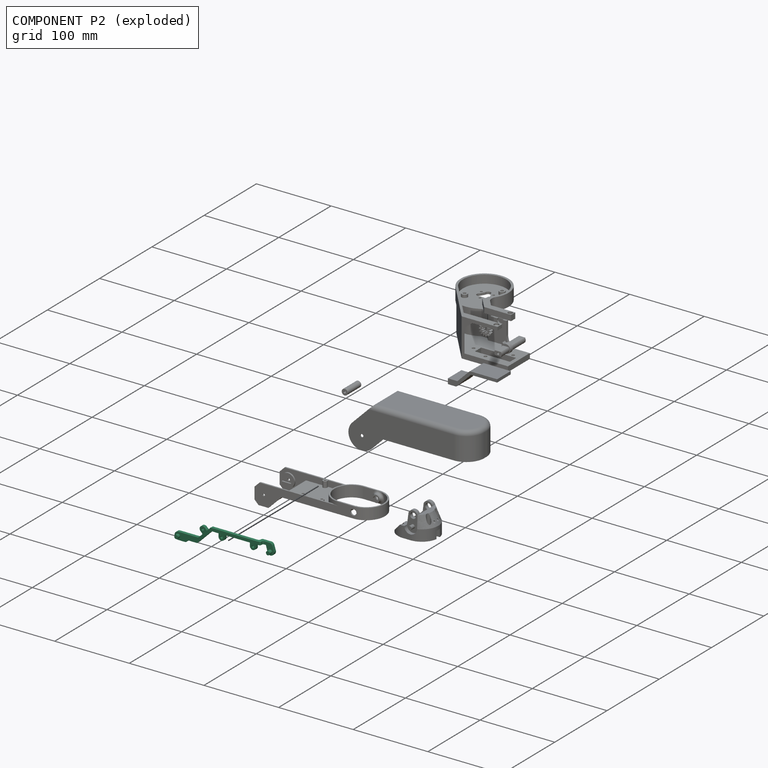
[diagram: component P2 — exploded]
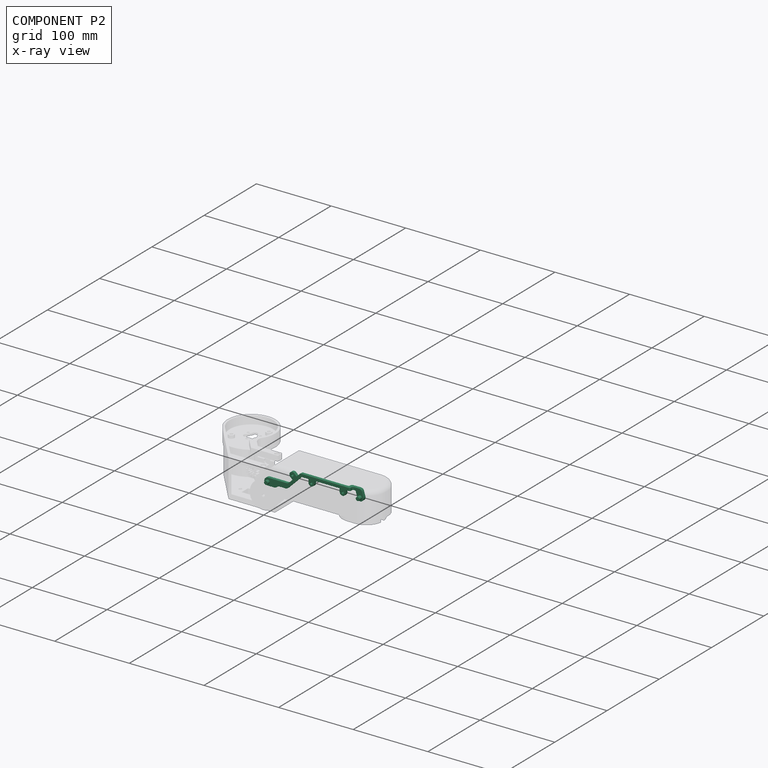
[diagram: component P2 — x-ray view]
COMPONENT P2 — recipe-attached ("DragShaftR", modeled in this document).
Held by: resting contact with P0 (derived edge); resting contact with P3 (derived edge); resting contact with P5 (derived edge); resting contact with P6 (derived edge).
Construction recipe (the document's own serialized feature program — sketch geometry with constraints, then the solid features built on it; lengths are millimeters unless a unit is written):

FEATURE [Sketcher::SketchObject] Sketch033
  ArcFitTolerance = 1e-06
  AttachmentSupport = -> [XZ_Plane004]
  FullyConstrained = false
  MakeInternals = false
  MapMode = 5
  Placement = pos=(0,0,0) rot=(1,0,0;1.5708rad)
  expr: Constraints[22] = <<Spreadsheet>>.ThirdArmLength + 10
  sketch-geometry (10):
    g0: LineSegment StartX=44.946 StartY=17.5 StartZ=0 EndX=110 EndY=17.5 EndZ=0
    g1: LineSegment StartX=26.0318 StartY=-1.41421 StartZ=0 EndX=44.946 EndY=17.5 EndZ=0
    g2: ArcOfCircle CenterX=24.6176 CenterY=0 CenterZ=0 NormalX=0 NormalY=0 NormalZ=-1 AngleXU=2.35619 Radius=2 StartAngle=1.5708 EndAngle=2.35619
    g3: LineSegment StartX=3e-16 StartY=-2 StartZ=0 EndX=24.6176 EndY=-2 EndZ=0
    g4: ArcOfCircle CenterX=0 CenterY=0 CenterZ=0 NormalX=0 NormalY=0 NormalZ=-1 AngleXU=-3.14159 Radius=2 StartAngle=1.5708 EndAngle=4.71239
    g5: LineSegment StartX=-1e-16 StartY=2 StartZ=0 EndX=23.7891 EndY=2 EndZ=0
    g6: LineSegment StartX=23.7891 StartY=2 StartZ=0 EndX=42.6541 EndY=20.865 EndZ=0
    g7: ArcOfCircle CenterX=44.1872 CenterY=19.3319 CenterZ=0 NormalX=0 NormalY=0 NormalZ=-1 AngleXU=-0.785398 Radius=2.16811 StartAngle=1.5708 EndAngle=2.35619
    g8: LineSegment StartX=44.1872 StartY=21.5 StartZ=0 EndX=110 EndY=21.5 EndZ=0
    g9: LineSegment StartX=110 StartY=21.5 StartZ=0 EndX=110 EndY=17.5 EndZ=0
  constraints (24):
    c: Coincident(g0,g1)
    c: Tangent(g1,g2) = -1.5708
    c: Tangent(g2,g3) = -1.5708
    c: Tangent(g3,g4) = -1.5708
    c: Tangent(g4,g5) = 1.5708
    c: Coincident(g5,g6)
    c: Tangent(g6,g7) = 1.5708
    c: Tangent(g7,g8) = 1.5708
    c: Horizontal(g0)
    c: Horizontal(g8)
    c: Horizontal(g5)
    c: Horizontal(g3)
    c: Angle(g-1,g1) = 0.785398
    c: Angle(g-1,g6) = 0.785398
    c: Distance(g0,g8) = 4
    c: Distance(g1,g6) = 4
    c: Distance(g3,g5) = 4
    c: Horizontal(g2,g4)
    c: Coincident(g4,g-1)
    c: Coincident(g9,g8)
    c: Coincident(g9,g0)
    c: Vertical(g9)
    c: Distance(g-2,g9) = 110
    c: Distance(g-1,g0) = 17.5
FEATURE [PartDesign::Pad] Pad018
  Direction = (0,-1,2e-16)
  Length = 4
  Length2 = 10
  Placement = pos=(0,0,0) rot=(1,0,0;1.5708rad)
  Profile = -> Sketch033
  ReferenceAxis = -> Sketch033 [N_Axis]
  Refine = true
  Reversed = true
  Suppressed = false
  Type = 0
FEATURE [Sketcher::SketchObject] Sketch034
  ArcFitTolerance = 1e-06
  AttachmentSupport = -> [Pad018]
  ExternalGeometry = -> [Sketch033]
  FullyConstrained = false
  MakeInternals = false
  MapMode = 5
  Placement = pos=(0,2.9e-15,0) rot=(1,0,0;1.5708rad)
  sketch-geometry (6):
    g0: ArcOfCircle CenterX=0 CenterY=0 CenterZ=0 NormalX=0 NormalY=0 NormalZ=1 AngleXU=0 Radius=5 StartAngle=1.5708 EndAngle=4.71239
    g1: LineSegment StartX=10.46 StartY=-5 StartZ=0 EndX=-2.25511e-08 EndY=-5 EndZ=0
    g2: LineSegment StartX=26.7891 StartY=5 StartZ=0 EndX=-5.64223e-08 EndY=5 EndZ=0
    g3: LineSegment StartX=26.7891 StartY=5 StartZ=0 EndX=26.7891 EndY=-0.656854 EndZ=0
    g4: LineSegment StartX=26.7891 StartY=-0.656854 StartZ=0 EndX=14.8031 EndY=-0.656854 EndZ=0
    g5: LineSegment StartX=14.8031 StartY=-0.656854 StartZ=0 EndX=10.46 EndY=-5 EndZ=0
  constraints (17):
    c: Coincident(g0,g-1)
    c: Diameter(g0) = 10
    c: PointOnObject(g2,g-3)
    c: Horizontal(g2)
    c: Distance(g0,g2) = 5
    c: Coincident(g0,g2)
    c: Coincident(g0,g1)
    c: Horizontal(g1)
    c: Distance(g0,g1) = 5
    c: Coincident(g3,g2)
    c: PointOnObject(g3,g-4)
    c: Vertical(g3)
    c: Coincident(g3,g4)
    c: Horizontal(g4)
    c: Coincident(g4,g5)
    c: Coincident(g5,g1)
    c: Angle(g5,g1) = 2.35619
FEATURE [PartDesign::Pad] Pad019
  BaseFeature = -> Pad018
  Direction = (0,-1,2e-16)
  Length = 4
  Length2 = 10
  Placement = pos=(0,0,0) rot=(1,0,0;1.5708rad)
  Profile = -> Sketch034
  ReferenceAxis = -> Sketch034 [N_Axis]
  Refine = true
  Reversed = true
  Suppressed = false
  Type = 0
FEATURE [Sketcher::SketchObject] Sketch035
  ArcFitTolerance = 1e-06
  AttachmentSupport = -> [Pad019]
  FullyConstrained = true
  MakeInternals = false
  MapMode = 5
  Placement = pos=(0,1.3e-15,0) rot=(1,0,0;1.5708rad)
  sketch-geometry (1):
    g0: Circle CenterX=0 CenterY=0 CenterZ=0 NormalX=0 NormalY=0 NormalZ=1 AngleXU=0 Radius=2.5
  constraints (2):
    c: Coincident(g0,g-1)
    c: Diameter(g0) = 5
FEATURE [PartDesign::Pad] Pad020
  BaseFeature = -> Pad019
  Direction = (0,-1,2e-16)
  Length = 4
  Length2 = 10
  Placement = pos=(0,0,0) rot=(1,0,0;1.5708rad)
  Profile = -> Sketch035
  ReferenceAxis = -> Sketch035 [N_Axis]
  Refine = true
  Suppressed = false
  Type = 0
FEATURE [Sketcher::SketchObject] Sketch036
  ArcFitTolerance = 1e-06
  AttachmentSupport = -> [Pad020]
  FullyConstrained = false
  MakeInternals = false
  MapMode = 5
  Placement = pos=(0,9.5e-15,21.5) rot=(0,0,1;3.14159rad)
  expr: Constraints[15] = <<Spreadsheet>>.ThirdArmLength + 10
  sketch-geometry (6):
    g0: LineSegment StartX=-110 StartY=0 StartZ=0 EndX=-106 EndY=0 EndZ=0
    g1: LineSegment StartX=-106 StartY=0 StartZ=0 EndX=-106 EndY=-9 EndZ=0
    g2: LineSegment StartX=-106 StartY=-9 StartZ=0 EndX=-121.594 EndY=-9 EndZ=0
    g3: LineSegment StartX=-121.594 StartY=-9 StartZ=0 EndX=-121.594 EndY=-5 EndZ=0
    g4: LineSegment StartX=-121.594 StartY=-5 StartZ=0 EndX=-110 EndY=-5 EndZ=0
    g5: LineSegment StartX=-110 StartY=-5 StartZ=0 EndX=-110 EndY=0 EndZ=0
  constraints (17):
    c: PointOnObject(g0,g-1)
    c: PointOnObject(g0,g-1)
    c: Coincident(g0,g1)
    c: Vertical(g1)
    c: Coincident(g1,g2)
    c: Horizontal(g2)
    c: Coincident(g2,g3)
    c: Vertical(g3)
    c: Coincident(g3,g4)
    c: Horizontal(g4)
    c: Coincident(g4,g5)
    c: Coincident(g5,g0)
    c: Vertical(g5)
    c: Distance(g2,g4) = 4
    c: Distance(g-1,g4) = 5
    c: Distance(g-2,g5) = 110
    c: Distance(g1,g5) = 4
FEATURE [PartDesign::Pad] Pad021
  BaseFeature = -> Pad020
  Direction = (0,0,1)
  Length = 4
  Length2 = 10
  Placement = pos=(0,0,0) rot=(1,0,0;1.5708rad)
  Profile = -> Sketch036
  ReferenceAxis = -> Sketch036 [N_Axis]
  Refine = true
  Reversed = true
  Suppressed = false
  Type = 0
FEATURE [Sketcher::SketchObject] Sketch037
  ArcFitTolerance = 1e-06
  AttachmentSupport = -> [Pad021]
  ExternalGeometry = -> [Pad021]
  FullyConstrained = false
  MakeInternals = false
  MapMode = 5
  Placement = pos=(0,9,-2e-15) rot=(-1,0,0;1.5708rad)
  expr: Constraints[7] = <<Spreadsheet>>.ThirdArmLength + 20
  sketch-geometry (4):
    g0: LineSegment StartX=121.594 StartY=-21.5 StartZ=0 EndX=112.785 EndY=-21.5 EndZ=0
    g1: LineSegment StartX=112.785 StartY=-21.5 StartZ=0 EndX=116.731 EndY=-7.62382 EndZ=0
    g2: LineSegment StartX=124.632 StartY=-11.7967 StartZ=0 EndX=121.594 EndY=-21.5 EndZ=0
    g3: ArcOfCircle CenterX=120 CenterY=-11 CenterZ=0 NormalX=0 NormalY=0 NormalZ=1 AngleXU=0 Radius=4.69961 StartAngle=6.11283 EndAngle=8.62328
  constraints (8):
    c: Coincident(g-3,g0)
    c: PointOnObject(g0,g-3)
    c: Coincident(g0,g1)
    c: Coincident(g2,g0)
    c: Coincident(g2,g3)
    c: Coincident(g1,g3)
    c: Distance(g3,g-1) = 11
    c: DistanceX(g-1,g3) = 120
FEATURE [PartDesign::Pad] Pad022
  BaseFeature = -> Pad021
  Direction = (0,1,2e-16)
  Length = 4
  Length2 = 10
  Placement = pos=(0,0,0) rot=(1,0,0;1.5708rad)
  Profile = -> Sketch037
  ReferenceAxis = -> Sketch037 [N_Axis]
  Refine = true
  Reversed = true
  Suppressed = false
  Type = 0
FEATURE [Sketcher::SketchObject] Sketch038
  ArcFitTolerance = 1e-06
  AttachmentSupport = -> [Pad022]
  FullyConstrained = true
  MakeInternals = false
  MapMode = 5
  Placement = pos=(1.4e-15,5,-1.7e-15) rot=(1,0,0;1.5708rad)
  expr: Constraints[2] = <<Spreadsheet>>.ThirdArmLength + 20
  sketch-geometry (1):
    g0: Circle CenterX=120 CenterY=11 CenterZ=0 NormalX=0 NormalY=0 NormalZ=1 AngleXU=0 Radius=2.5
  constraints (3):
    c: Diameter(g0) = 5
    c: DistanceY(g-1,g0) = 11
    c: DistanceX(g-1,g0) = 120
FEATURE [PartDesign::Pad] Pad023
  BaseFeature = -> Pad022
  Direction = (0,-1,2e-16)
  Length = 5
  Length2 = 10
  Placement = pos=(0,0,0) rot=(1,0,0;1.5708rad)
  Profile = -> Sketch038
  ReferenceAxis = -> Sketch038 [N_Axis]
  Refine = true
  Suppressed = false
  Type = 0
FEATURE [PartDesign::Fillet] Fillet
  Base = -> Pad023 [Edge45,Edge21]
  BaseFeature = -> Pad023
  Placement = pos=(0,0,0) rot=(1,0,0;1.5708rad)
  Radius = 2
  Refine = true
  SupportTransform = false
  Suppressed = false
  UseAllEdges = false
FEATURE [PartDesign::Fillet] Fillet001
  Base = -> Fillet [Edge29,Edge28]
  BaseFeature = -> Fillet
  Placement = pos=(0,0,0) rot=(1,0,0;1.5708rad)
  Radius = 2
  Refine = true
  SupportTransform = false
  Suppressed = false
  UseAllEdges = false
FEATURE [PartDesign::Fillet] Fillet002
  Base = -> Fillet001 [Edge59]
  BaseFeature = -> Fillet001
  Placement = pos=(0,0,0) rot=(1,0,0;1.5708rad)
  Radius = 4
  Refine = true
  SupportTransform = false
  Suppressed = false
  UseAllEdges = false
FEATURE [PartDesign::Fillet] Fillet003
  Base = -> Fillet002 [Edge70,Edge71]
  BaseFeature = -> Fillet002
  Placement = pos=(0,0,0) rot=(1,0,0;1.5708rad)
  Radius = 4
  Refine = true
  SupportTransform = false
  Suppressed = false
  UseAllEdges = false
FEATURE [Sketcher::SketchObject] Sketch049
  ArcFitTolerance = 1e-06
  AttachmentSupport = -> [Fillet003]
  ExternalGeometry = -> [Fillet003]
  FullyConstrained = true
  MakeInternals = false
  MapMode = 5
  Placement = pos=(0,4,-1.6e-15) rot=(-1,0,0;1.5708rad)
  sketch-geometry (15):
    g0: ArcOfCircle CenterX=58 CenterY=-13.5 CenterZ=0 NormalX=0 NormalY=0 NormalZ=1 AngleXU=0 Radius=4 StartAngle=6.28318 EndAngle=9.42478
    g1: LineSegment StartX=54 StartY=-13.5 StartZ=0 EndX=54 EndY=-17.5 EndZ=0
    g2: LineSegment StartX=62 StartY=-13.5 StartZ=0 EndX=62 EndY=-17.5 EndZ=0
    g3: LineSegment StartX=62 StartY=-17.5 StartZ=0 EndX=54 EndY=-17.5 EndZ=0
    g4: Circle CenterX=58 CenterY=-13.5 CenterZ=0 NormalX=0 NormalY=0 NormalZ=1 AngleXU=0 Radius=1.5
    g5: ArcOfCircle CenterX=100 CenterY=-13.5 CenterZ=0 NormalX=0 NormalY=0 NormalZ=1 AngleXU=0 Radius=4 StartAngle=6.28318 EndAngle=9.42478
    g6: LineSegment StartX=96 StartY=-13.5 StartZ=0 EndX=96 EndY=-17.5 EndZ=0
    g7: LineSegment StartX=96 StartY=-17.5 StartZ=0 EndX=104 EndY=-17.5 EndZ=0
    g8: LineSegment StartX=104 StartY=-17.5 StartZ=0 EndX=104 EndY=-13.5 EndZ=0
    g9: Circle CenterX=100 CenterY=-13.5 CenterZ=0 NormalX=0 NormalY=0 NormalZ=1 AngleXU=0 Radius=1.5
    g10: ArcOfCircle CenterX=32.6541 CenterY=-16.5218 CenterZ=0 NormalX=0 NormalY=0 NormalZ=1 AngleXU=0 Radius=4 StartAngle=2.35619 EndAngle=5.49779
    g11: Circle CenterX=32.6541 CenterY=-16.5218 CenterZ=0 NormalX=0 NormalY=0 NormalZ=1 AngleXU=0 Radius=1.5
    g12: LineSegment StartX=29.8257 StartY=-13.6934 StartZ=0 EndX=32.6541 EndY=-10.865 EndZ=0
    g13: LineSegment StartX=32.6541 StartY=-10.865 StartZ=0 EndX=38.311 EndY=-16.5218 EndZ=0
    g14: LineSegment StartX=38.311 StartY=-16.5218 StartZ=0 EndX=35.4825 EndY=-19.3503 EndZ=0
  constraints (41):
    c: Radius(g0) = 4
    c: Angle(g0) = 3.14159
    c: DistanceX(g-1,g0) = 58
    c: Distance(g0,g-4) = 4
    c: Distance(g0,g-4) = 4
    c: Tangent(g0,g1) = -1.5708
    c: Tangent(g0,g2) = 1.5708
    c: Coincident(g2,g3)
    c: Coincident(g3,g1)
    c: Horizontal(g3)
    c: Diameter(g4) = 3
    c: Coincident(g4,g0)
    c: Horizontal(g1,g-4)
    c: Radius(g5) = 4
    c: Angle(g5) = 3.14159
    c: Tangent(g5,g6) = -1.5708
    c: Coincident(g6,g7)
    c: PointOnObject(g7,g-4)
    c: Horizontal(g7)
    c: Coincident(g7,g8)
    c: Coincident(g8,g5)
    c: Vertical(g8)
    c: Distance(g5,g-4) = 4
    c: Diameter(g9) = 3
    c: Coincident(g9,g5)
    c: DistanceX(g-1,g5) = 100
    c: Vertical(g6)
    c: Radius(g10) = 4
    c: Angle(g10) = 3.14159
    c: Distance(g10,g-5) = 4
    c: Diameter(g11) = 3
    c: Coincident(g11,g10)
    c: Tangent(g10,g12) = 1.5708
    c: Coincident(g12,g13)
    c: PointOnObject(g13,g-5)
    c: Coincident(g13,g14)
    c: Coincident(g14,g10)
    c: Angle(g14,g-5) = 1.5708
    c: Angle(g-5,g12) = 1.5708
    c: DistanceX(g10,g-5) = 10
    c: Parallel(g13,g-5)
FEATURE [PartDesign::Pad] Pad028
  BaseFeature = -> Fillet003
  Direction = (0,1,2e-16)
  Length = 4
  Length2 = 10
  Placement = pos=(0,0,0) rot=(1,0,0;1.5708rad)
  Profile = -> Sketch049
  ReferenceAxis = -> Sketch049 [N_Axis]
  Refine = true
  Reversed = true
  Suppressed = false
  Type = 0
FEATURE [PartDesign::Body] Body004  label="DragShaftR"
  AllowCompound = false
  Group = -> [Sketch033,Pad018,Sketch034,Pad019,Sketch035,Pad020,Sketch036,Pad021,Sketch037,Pad022,Sketch038,Pad023,Fillet,Fillet001,Fillet002,Fillet003,Sketch049,Pad028]
  Origin = -> Origin004
  Placement = pos=(0,8,13) rot=(0,0,1;0rad)
  Tip = -> Pad028
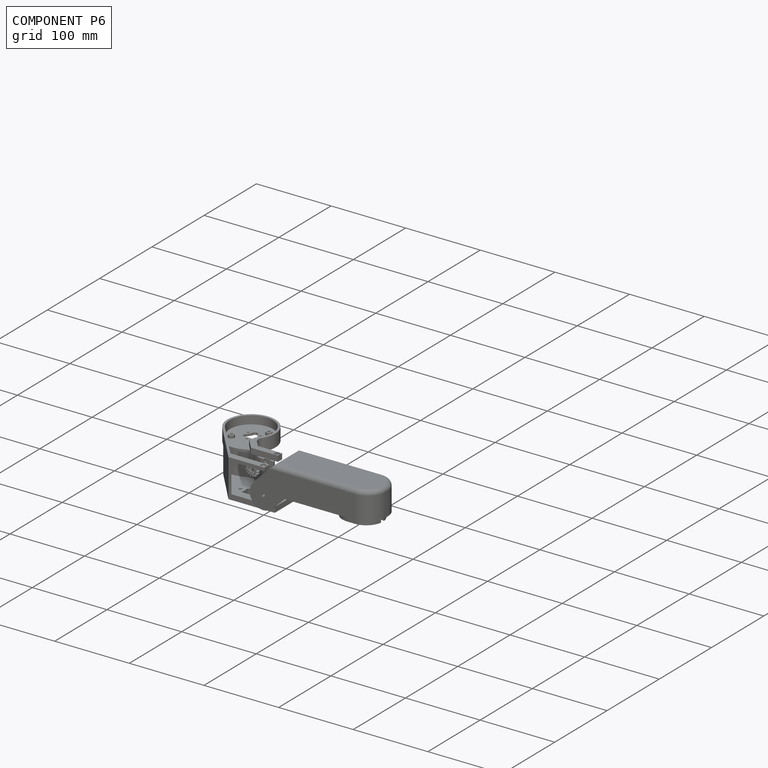
[diagram: component P6 — assembled]
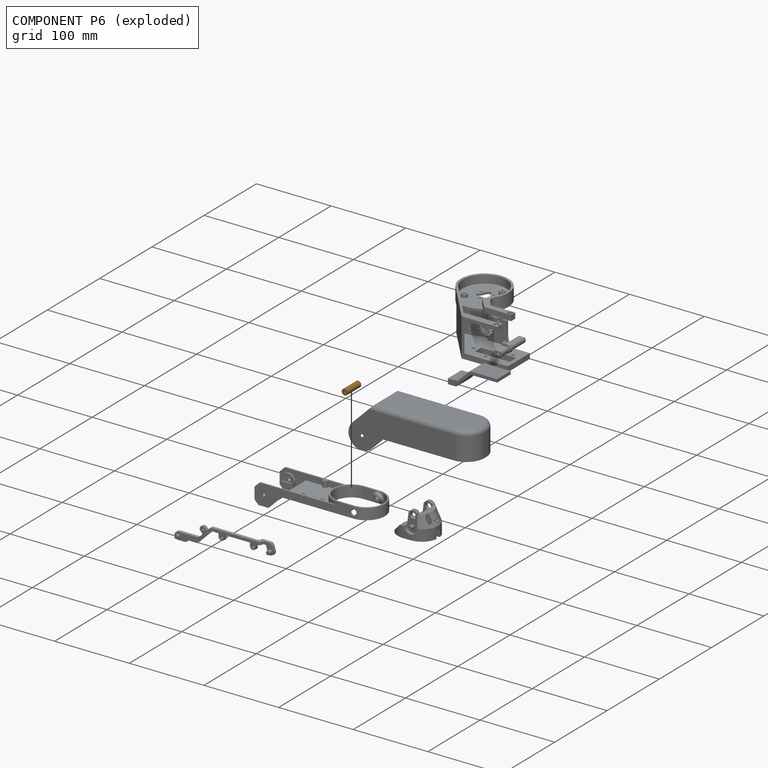
[diagram: component P6 — exploded]
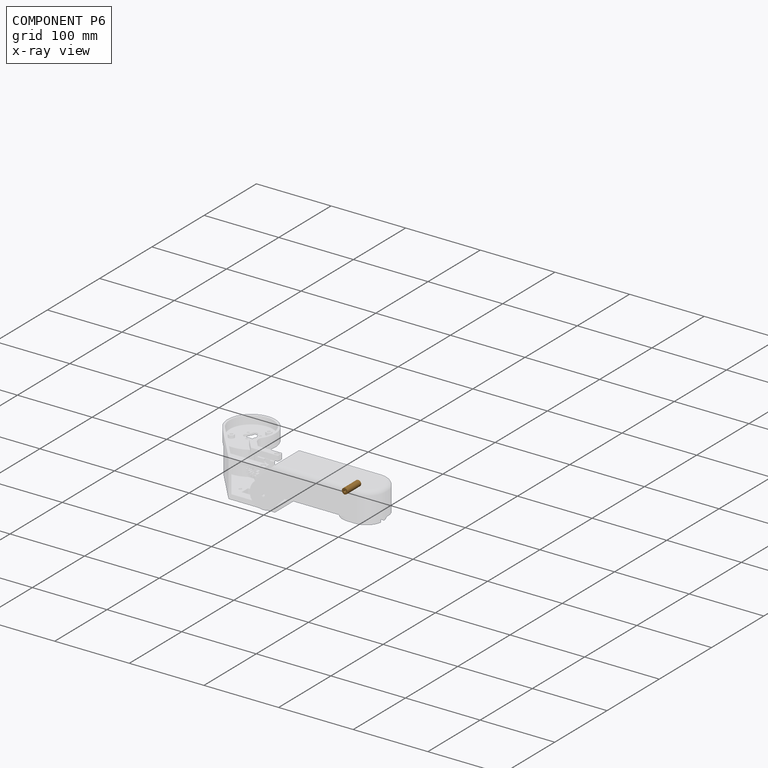
[diagram: component P6 — x-ray view]
COMPONENT P6 — geometry summary ("DragShaftBridge002"; no construction recipe available for this part):
  bounding box: 26.0 x 8.0 x 8.0 mm
  tessellated surface: 2,548 triangles
  volume: 1232 mm^3 (74% of its bounding box)
  symmetry: 2-fold rotationally symmetric about the x axis; revolution-symmetric about the y axis through its bounding-box center; 2-fold rotationally symmetric about the z axis; mirror-symmetric across its z mid-plane
Held by: resting contact with P2 (derived edge).
PROVENANCE & LICENSES
Assembly and component geometry: a FreeCAD (.FCStd) document from a public repository crawl; components, placements and joints were extracted with FreeCAD and each solid tessellated.
Construction recipes: the document's own serialized feature recipes (and, for linked parts, the recipes of companion documents from the same project).
License: as declared in the source repository (recorded in the dataset sidecar).
Joints: native FreeCAD joints and A2plus constraints are mapped to standard mate types; edges marked 'derived from contact' connect touching components and are measured from the geometry, not modeled.
Verification: 4 of this assembly's 7 components carry a construction recipe (4 from this document itself); the rest are geometry-only. Every component's tessellation passed the extraction mesh gates (mesh-volume checksum against the B-rep where available, bounding-box inflation <= 2%).
Renders: orthographic iso camera (az 35 / el 25); the floor grid conveys scale (grid pitch printed in each image; no ruler). In the exploded view each component is displaced by its stored offset vector: the offsets alone carry the explosion direction (mate normal/axis signs are not orientation cues and do not encode it), and separation distances are assigned per mate-chain, not proportionally to assembly-order depth.
